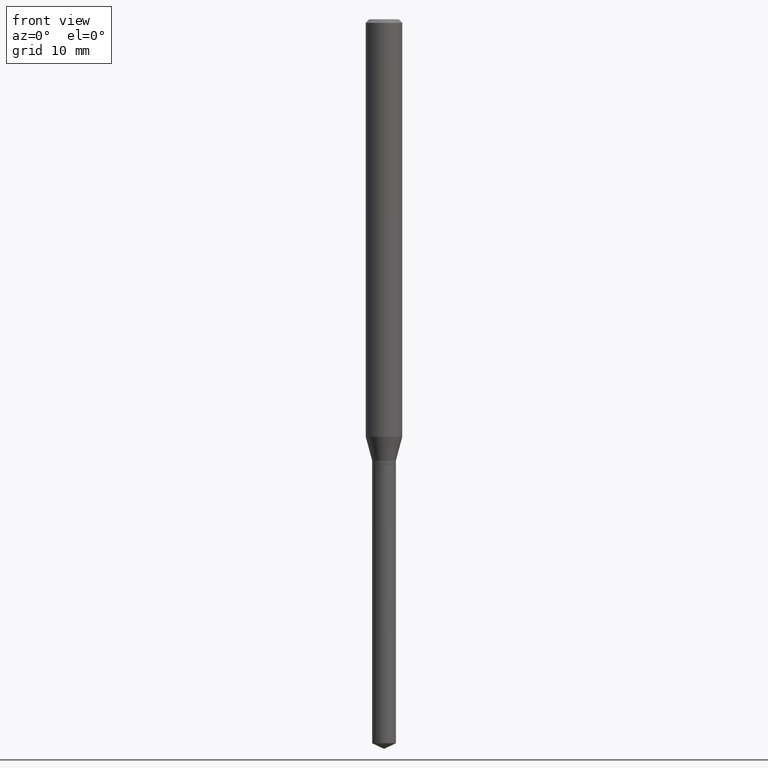
[diagram: clean part render]
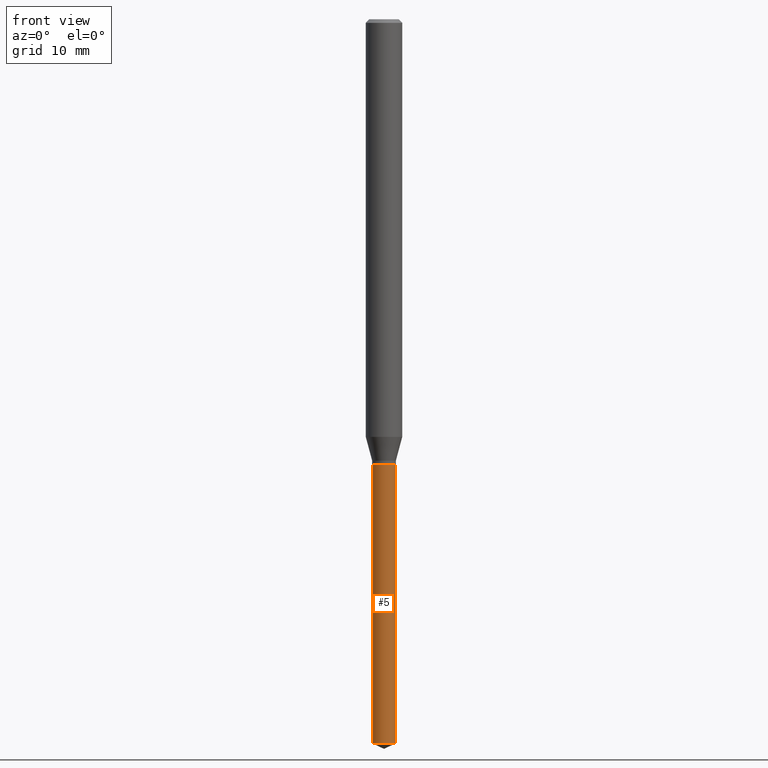
[diagram: same view with one face highlighted and labeled with its STEP entity id]
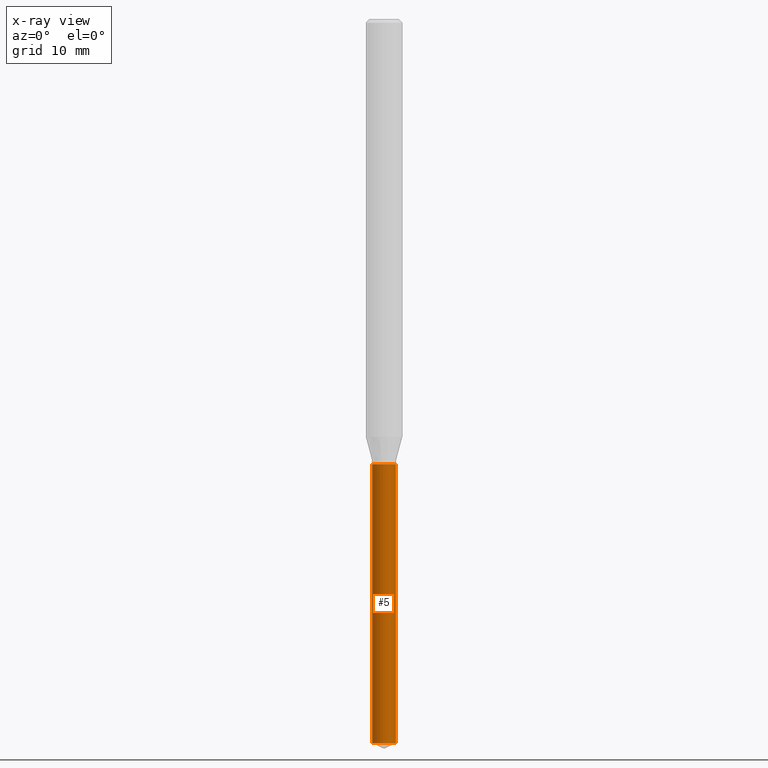
[diagram: x-ray of the same camera — body ghosted, the highlighted face saturated]
A machine part, front view. The second image highlights one B-rep face of the part: STEP entity #5.
The next image is the same camera in x-ray: the body ghosted, the highlighted face saturated — about 0% of this face is hidden behind the body in this view.
In plain terms, the highlighted cylindrical surface (edge-blend (fillet) strip) has radius 0.9754 mm, axis along (-0, 0, 1).
Its self-contained STEP definition (entity closure, byte-faithful):
#3 = FACE_OUTER_BOUND ( 'NONE', #156, .T. ) ;
#5 = ADVANCED_FACE ( 'NONE', ( #3 ), #341, .T. ) ;
#8 = EDGE_CURVE ( 'NONE', #342, #145, #367, .T. ) ;
#40 = VERTEX_POINT ( 'NONE', #75 ) ;
#44 = CARTESIAN_POINT ( 'NONE',  ( 3.523186909070927115E-29, -5.030177164871321543E-15, -1.440700000000000314 ) ) ;
#57 = CIRCLE ( 'NONE', #298, 0.03839999999999999664 ) ;
#75 = CARTESIAN_POINT ( 'NONE',  ( 0.03839999999999998970, -8.452505476884922181E-15, -2.344093785926848028 ) ) ;
#86 = LINE ( 'NONE', #242, #104 ) ;
#96 = AXIS2_PLACEMENT_3D ( 'NONE', #199, #197, #105 ) ;
#103 = VECTOR ( 'NONE', #352, 39.37007874015748143 ) ;
#104 = VECTOR ( 'NONE', #403, 39.37007874015748143 ) ;
#105 = DIRECTION ( 'NONE',  ( 1.000000000000000000, -6.982962677686277755E-15, 0.000000000000000000 ) ) ;
#118 = CARTESIAN_POINT ( 'NONE',  ( 0.03839999999999999664, -5.298322931694473957E-15, -1.440700000000000314 ) ) ;
#124 = CARTESIAN_POINT ( 'NONE',  ( 0.03839999999999999664, -5.298322931694473957E-15, -1.440700000000000314 ) ) ;
#128 = DIRECTION ( 'NONE',  ( 1.000000000000000000, -6.982962677686277755E-15, 0.000000000000000000 ) ) ;
#145 = VERTEX_POINT ( 'NONE', #124 ) ;
#147 = EDGE_CURVE ( 'NONE', #40, #145, #406, .T. ) ;
#156 = EDGE_LOOP ( 'NONE', ( #376, #263, #182, #385 ) ) ;
#182 = ORIENTED_EDGE ( 'NONE', *, *, #147, .T. ) ;
#189 = CARTESIAN_POINT ( 'NONE',  ( -0.03839999999999999664, -6.334420026934666468E-15, -1.440700000000000314 ) ) ;
#193 = EDGE_CURVE ( 'NONE', #346, #342, #86, .T. ) ;
#197 = DIRECTION ( 'NONE',  ( -2.445468806185136597E-29, 3.491481338843145583E-15, 1.000000000000000000 ) ) ;
#199 = CARTESIAN_POINT ( 'NONE',  ( 3.523186909070927115E-29, -5.030177164871321543E-15, -1.440700000000000314 ) ) ;
#242 = CARTESIAN_POINT ( 'NONE',  ( -0.03839999999999999664, -4.757328754339442356E-15, -1.440700000000000314 ) ) ;
#263 = ORIENTED_EDGE ( 'NONE', *, *, #264, .T. ) ;
#264 = EDGE_CURVE ( 'NONE', #346, #40, #57, .T. ) ;
#267 = AXIS2_PLACEMENT_3D ( 'NONE', #44, #345, #310 ) ;
#288 = CARTESIAN_POINT ( 'NONE',  ( 5.732408232256526477E-29, -8.184359710061769767E-15, -2.344093785926848028 ) ) ;
#298 = AXIS2_PLACEMENT_3D ( 'NONE', #288, #357, #128 ) ;
#310 = DIRECTION ( 'NONE',  ( 1.000000000000000000, -6.982962677686277755E-15, 0.000000000000000000 ) ) ;
#338 = CARTESIAN_POINT ( 'NONE',  ( -0.03839999999999998970, -7.911511299529891368E-15, -2.344093785926848028 ) ) ;
#341 = CYLINDRICAL_SURFACE ( 'NONE', #267, 0.03839999999999999664 ) ;
#342 = VERTEX_POINT ( 'NONE', #189 ) ;
#345 = DIRECTION ( 'NONE',  ( -2.445468806185136597E-29, 3.491481338843145583E-15, 1.000000000000000000 ) ) ;
#346 = VERTEX_POINT ( 'NONE', #338 ) ;
#352 = DIRECTION ( 'NONE',  ( -2.445468806185136877E-29, 3.491481338843145188E-15, 1.000000000000000000 ) ) ;
#357 = DIRECTION ( 'NONE',  ( -2.445468806185136597E-29, 3.491481338843145583E-15, 1.000000000000000000 ) ) ;
#367 = CIRCLE ( 'NONE', #96, 0.03839999999999999664 ) ;
#376 = ORIENTED_EDGE ( 'NONE', *, *, #193, .F. ) ;
#385 = ORIENTED_EDGE ( 'NONE', *, *, #8, .F. ) ;
#403 = DIRECTION ( 'NONE',  ( -2.445468806185136877E-29, 3.491481338843145188E-15, 1.000000000000000000 ) ) ;
#406 = LINE ( 'NONE', #118, #103 ) ;